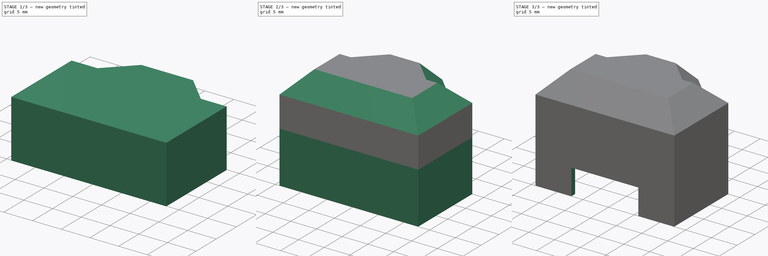
[diagram: build sequence overview — one tinted view per stage of 3, left to right]
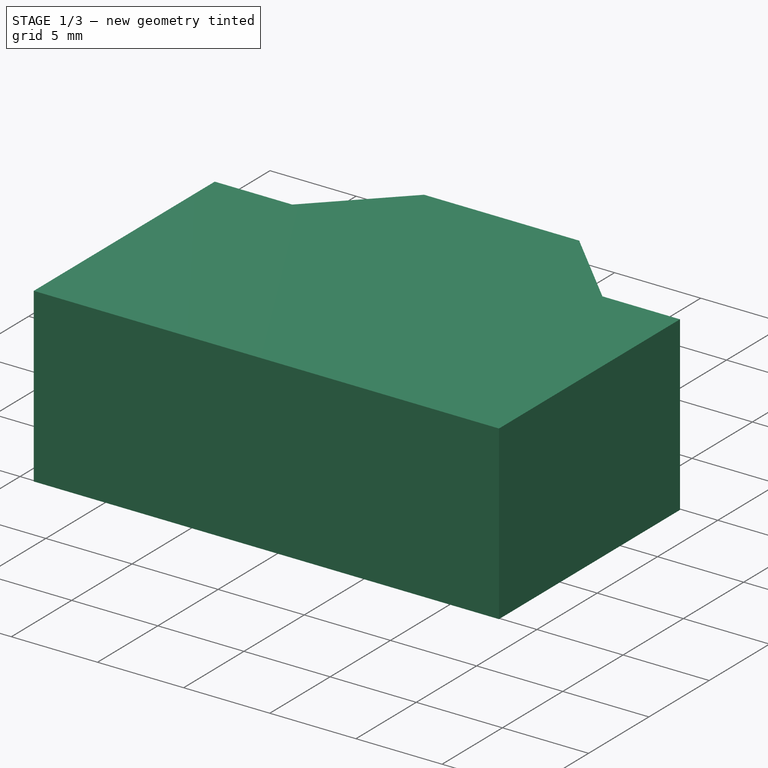
[diagram: stage 1 of 3 — iso view after this stage's code; geometry added in this stage tinted green]
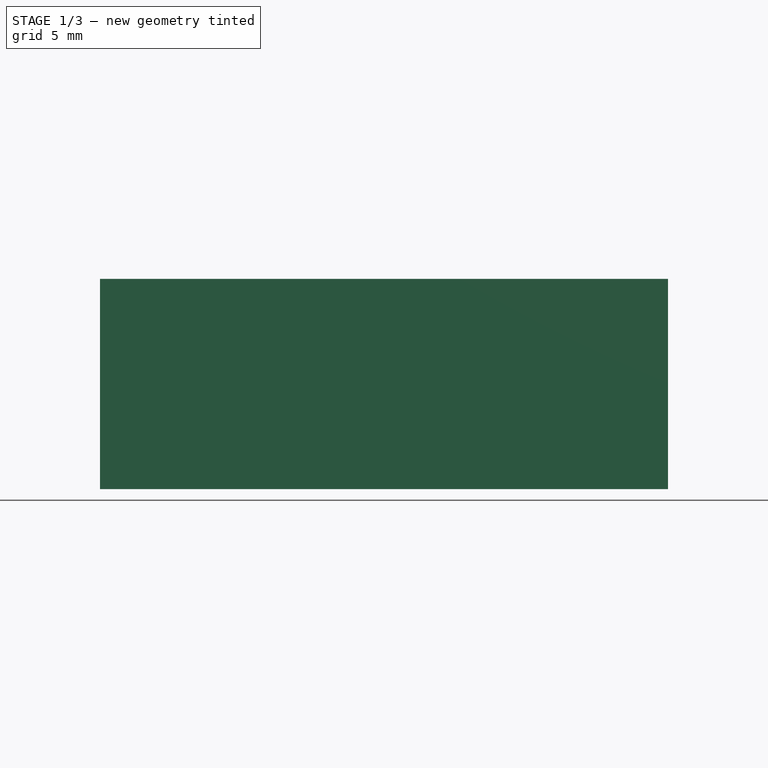
[diagram: stage 1 of 3 — front view after this stage's code; geometry added in this stage tinted green]
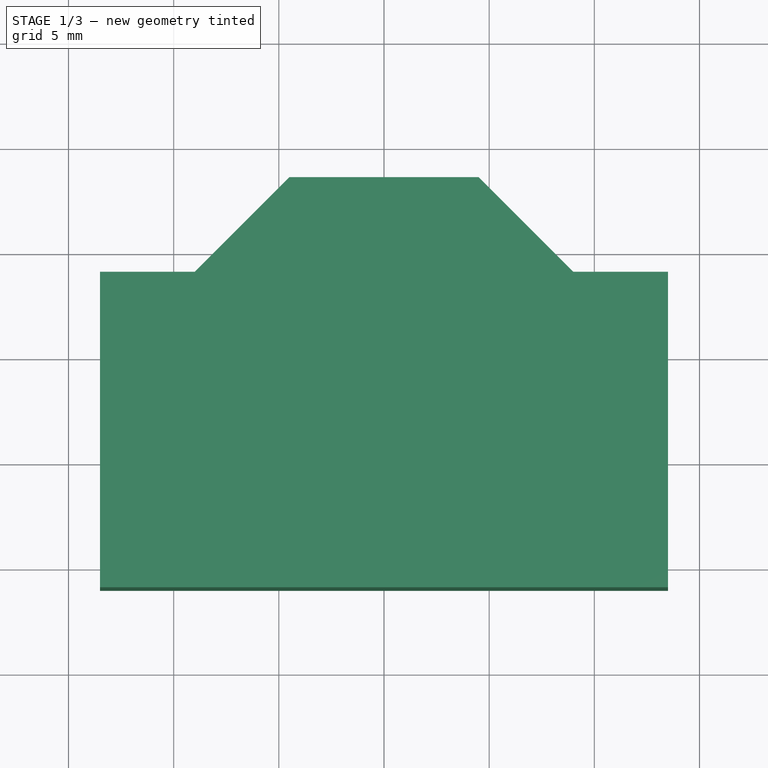
[diagram: stage 1 of 3 — top view after this stage's code; geometry added in this stage tinted green]
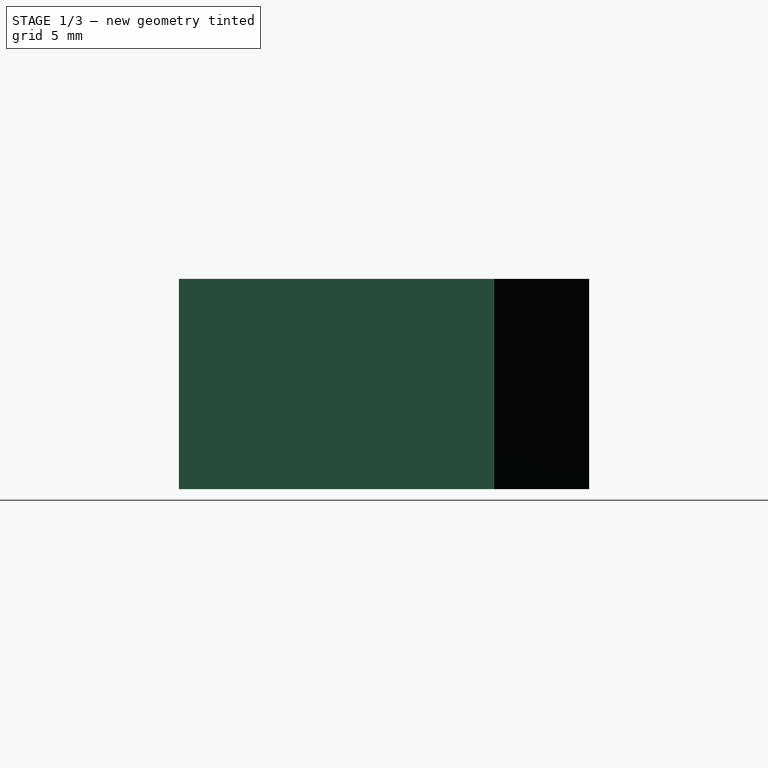
[diagram: stage 1 of 3 — right view after this stage's code; geometry added in this stage tinted green]
FCSTD DOCUMENT  (FreeCAD 0.16R6712 (Git))
Label: RGBCovering
License: All rights reserved
LicenseURL: http://en.wikipedia.org/wiki/All_rights_reserved
objects: Sketcher::SketchObject×4, PartDesign::Pad×2, PartDesign::Pocket×2, PartDesign::Chamfer×1, PartDesign::Fillet×1
note: 14 computed .brp shape members not serialized (recipe doc carries the construction recipe); baked Part::Feature solids carry a one-line shape summary decoded from their .brp

FEATURE [Sketcher::SketchObject] Sketch
  sketch-geometry (8):
    g0: LineSegment StartX=-4.5 StartY=8.5 StartZ=0 EndX=4.5 EndY=8.5 EndZ=0
    g1: LineSegment StartX=4.5 StartY=8.5 StartZ=0 EndX=9 EndY=4 EndZ=0
    g2: LineSegment StartX=9 StartY=4 StartZ=0 EndX=13.5 EndY=4 EndZ=0
    g3: LineSegment StartX=13.5 StartY=4 StartZ=0 EndX=13.5 EndY=-11 EndZ=0
    g4: LineSegment StartX=13.5 StartY=-11 StartZ=0 EndX=-13.5 EndY=-11 EndZ=0
    g5: LineSegment StartX=-13.5 StartY=-11 StartZ=0 EndX=-13.5 EndY=4 EndZ=0
    g6: LineSegment StartX=-13.5 StartY=4 StartZ=0 EndX=-9 EndY=4 EndZ=0
    g7: LineSegment StartX=-9 StartY=4 StartZ=0 EndX=-4.5 EndY=8.5 EndZ=0
  constraints (24):
    c: Horizontal(g0)
    c: Coincident(g0,g1)
    c: Horizontal(g2)
    c: Coincident(g2,g3)
    c: Vertical(g3)
    c: Coincident(g3,g4)
    c: Horizontal(g4)
    c: Coincident(g4,g5)
    c: Vertical(g5)
    c: Coincident(g5,g6)
    c: Horizontal(g6)
    c: Symmetric(g4,g3,g-2)
    c: Equal(g5,g3)
    c: Equal(g6,g2)
    c: Coincident(g7,g0)
    c: Equal(g7,g1)
    c: Distance(g4) = 27
    c: DistanceY(g4,g-1) = 11
    c: Angle(g7,g0) = 2.35619
    c: DistanceY(g0) = 8.5
    c: Coincident(g6,g7)
    c: Coincident(g2,g1)
    c: Distance(g0) = 9
    c: DistanceY(g5) = 4
FEATURE [PartDesign::Pad] Pad
  Length = 10
  Length2 = 100
  Sketch = -> Sketch
  Type = 0
FEATURE [Sketcher::SketchObject] Sketch001
  Placement = pos=(0,0,0) rot=(1,0,0;3.14159rad)
  Support = -> Pad [Face9]
  sketch-geometry (1):
    g0: Circle CenterX=0 CenterY=0 CenterZ=0 NormalX=0 NormalY=0 NormalZ=1 Radius=2.55
  constraints (2):
    c: Coincident(g0,g-1)
    c: Radius(g0) = 2.55
FEATURE [PartDesign::Pocket] Pocket
  Length = 8
  Sketch = -> Sketch001
  Type = 0
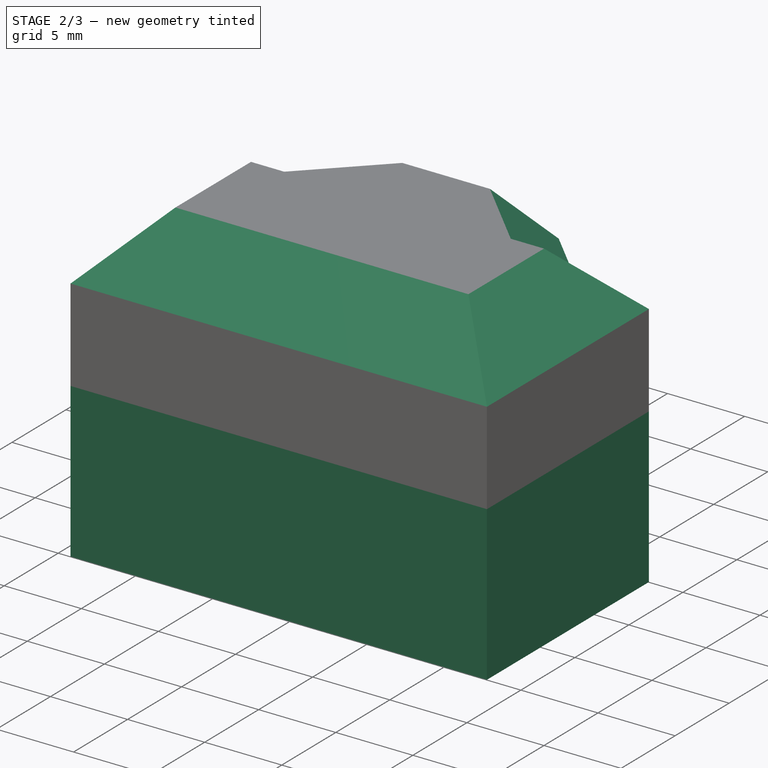
[diagram: stage 2 of 3 — iso view after this stage's code; geometry added in this stage tinted green]
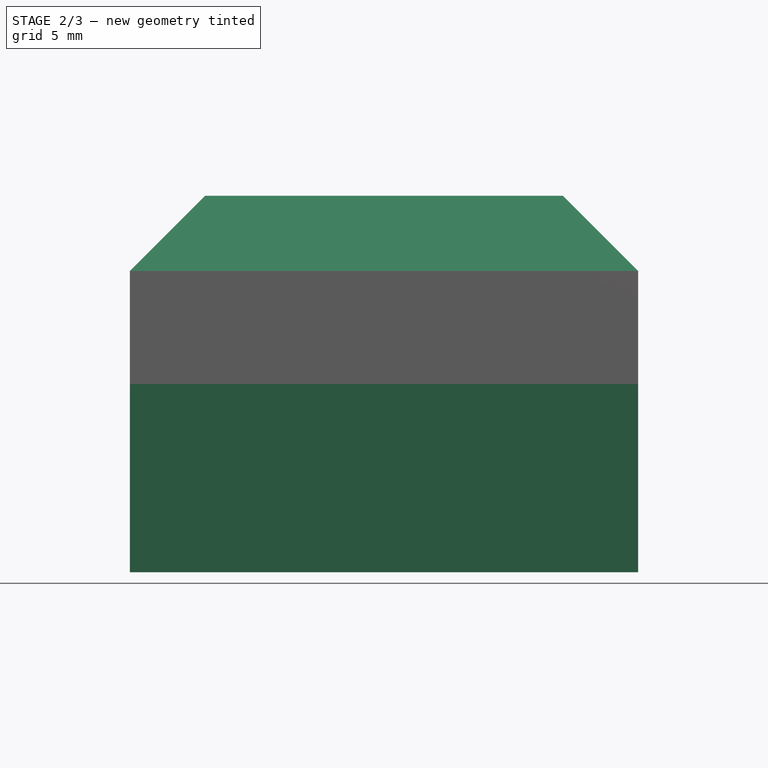
[diagram: stage 2 of 3 — front view after this stage's code; geometry added in this stage tinted green]
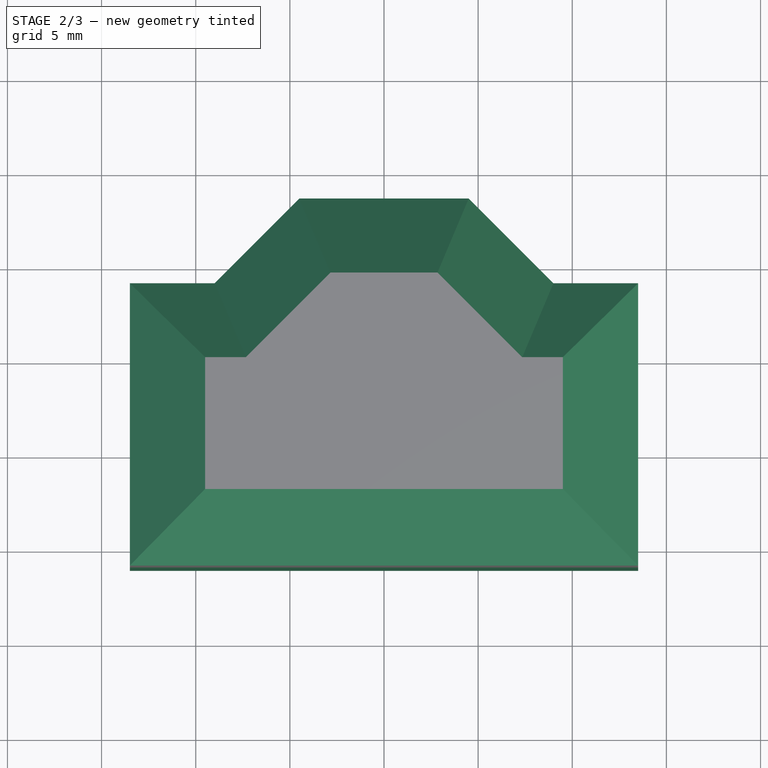
[diagram: stage 2 of 3 — top view after this stage's code; geometry added in this stage tinted green]
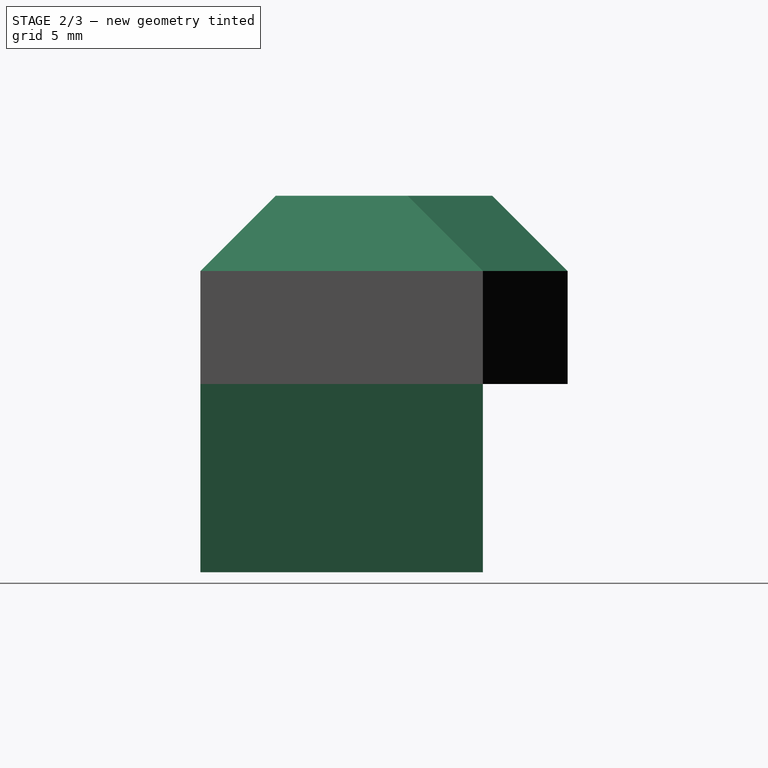
[diagram: stage 2 of 3 — right view after this stage's code; geometry added in this stage tinted green]
FEATURE [PartDesign::Chamfer] Chamfer
  Base = -> Pocket [Edge4,Edge10,Edge17,Edge18,Edge19,Edge20,Edge21,Edge7]
  Size = 4
FEATURE [Sketcher::SketchObject] Sketch002
  ExternalGeometry = -> [Chamfer]
  Placement = pos=(0,0,0) rot=(1,0,0;3.14159rad)
  Support = -> Chamfer [Face4]
  sketch-geometry (9):
    g0: LineSegment StartX=-13.5 StartY=-4 StartZ=0 EndX=-12.5 EndY=-4 EndZ=0
    g1: LineSegment StartX=-12.5 StartY=-4 StartZ=0 EndX=-12.5 EndY=10 EndZ=0
    g2: LineSegment StartX=-12.5 StartY=10 StartZ=0 EndX=12.5 EndY=10 EndZ=0
    g3: LineSegment StartX=12.5 StartY=10 StartZ=0 EndX=12.5 EndY=-4 EndZ=0
    g4: LineSegment StartX=12.5 StartY=-4 StartZ=0 EndX=13.5 EndY=-4 EndZ=0
    g5: LineSegment StartX=13.5 StartY=-4 StartZ=0 EndX=13.5 EndY=11 EndZ=0
    g6: LineSegment StartX=13.5 StartY=11 StartZ=0 EndX=-13.5 EndY=11 EndZ=0
    g7: LineSegment StartX=-13.5 StartY=11 StartZ=0 EndX=-13.5 EndY=-4 EndZ=0
    g8: LineSegment [constr] StartX=-12.5 StartY=10 StartZ=0 EndX=-12.5 EndY=11 EndZ=0
  constraints (25):
    c: Horizontal(g0)
    c: Coincident(g0,g1)
    c: Vertical(g1)
    c: Coincident(g1,g2)
    c: Horizontal(g2)
    c: Coincident(g2,g3)
    c: Vertical(g3)
    c: Coincident(g3,g4)
    c: Horizontal(g4)
    c: Coincident(g4,g5)
    c: Vertical(g5)
    c: Coincident(g5,g6)
    c: Horizontal(g6)
    c: Coincident(g6,g7)
    c: Vertical(g7)
    c: Coincident(g7,g0)
    c: Coincident(g8,g1)
    c: PointOnObject(g8,g6)
    c: Vertical(g8)
    c: Equal(g8,g0)
    c: Equal(g0,g4)
    c: Distance(g0) = 1
    c: Coincident(g0,g-4)
    c: Coincident(g6,g-3)
    c: Coincident(g4,g-5)
FEATURE [PartDesign::Pad] Pad001
  Length = 10
  Length2 = 100
  Sketch = -> Sketch002
  Type = 0
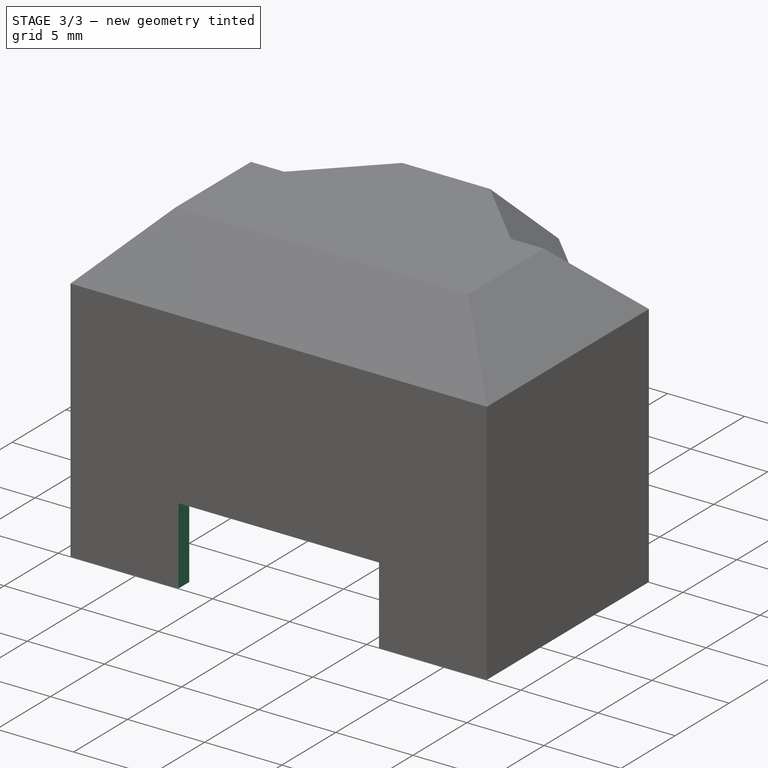
[diagram: stage 3 of 3 — iso view after this stage's code; geometry added in this stage tinted green]
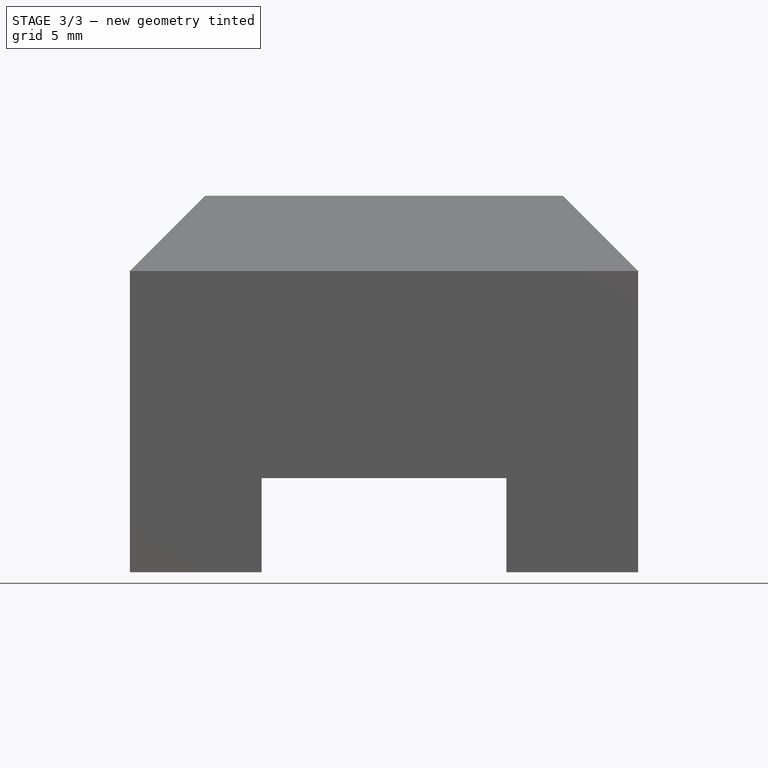
[diagram: stage 3 of 3 — front view after this stage's code; geometry added in this stage tinted green]
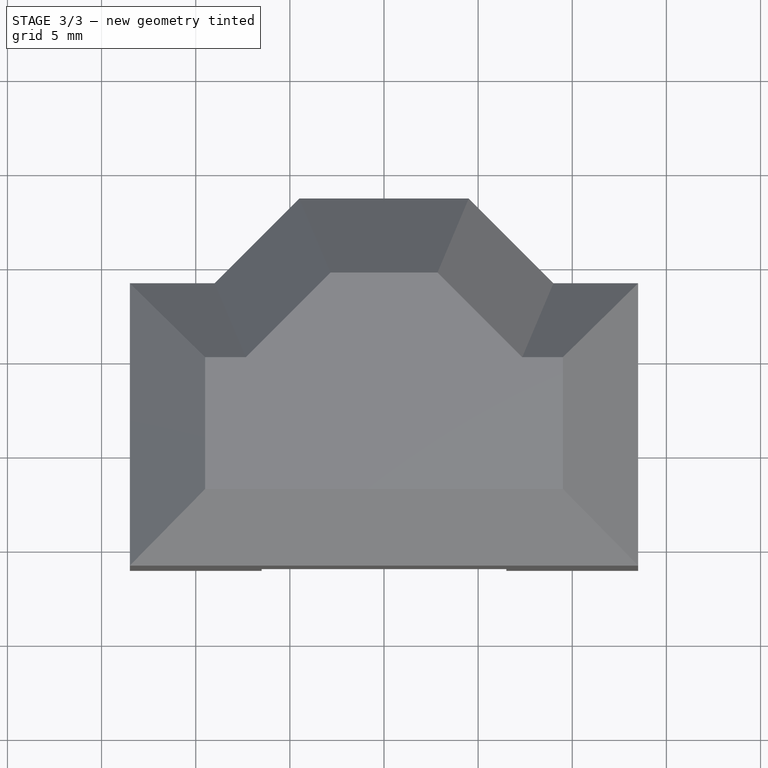
[diagram: stage 3 of 3 — top view after this stage's code; geometry added in this stage tinted green]
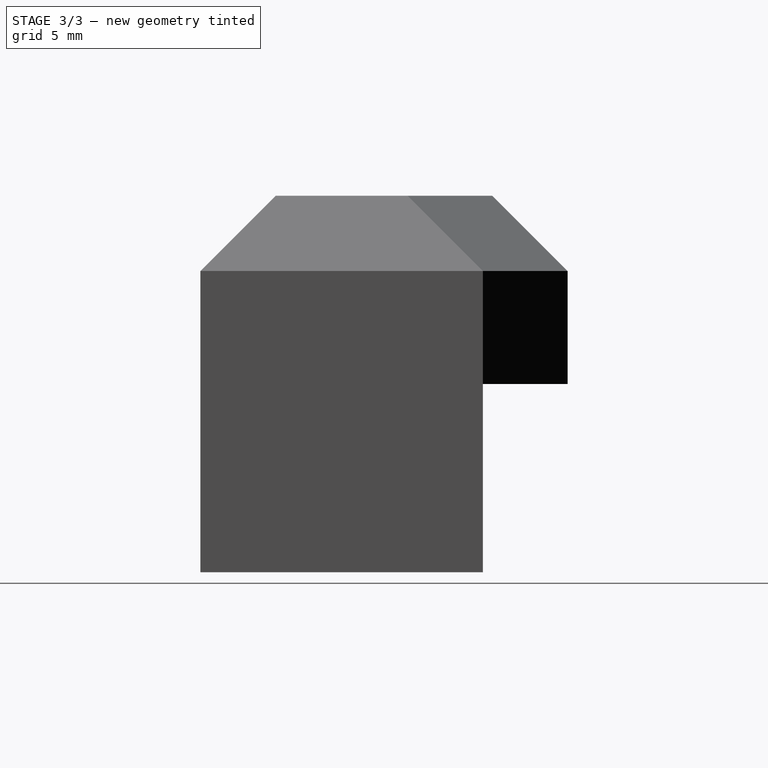
[diagram: stage 3 of 3 — right view after this stage's code; geometry added in this stage tinted green]
FEATURE [Sketcher::SketchObject] Sketch003
  Placement = pos=(0,-11,0) rot=(1,0,0;1.5708rad)
  Support = -> Pad001 [Face8]
  sketch-geometry (4):
    g0: LineSegment StartX=-6.5 StartY=-5 StartZ=0 EndX=6.5 EndY=-5 EndZ=0
    g1: LineSegment StartX=6.5 StartY=-5 StartZ=0 EndX=6.5 EndY=-11.8448 EndZ=0
    g2: LineSegment StartX=6.5 StartY=-11.8448 StartZ=0 EndX=-6.5 EndY=-11.8448 EndZ=0
    g3: LineSegment StartX=-6.5 StartY=-11.8448 StartZ=0 EndX=-6.5 EndY=-5 EndZ=0
  constraints (11):
    c: Coincident(g0,g1)
    c: Coincident(g1,g2)
    c: Coincident(g2,g3)
    c: Coincident(g3,g0)
    c: Horizontal(g0)
    c: Horizontal(g2)
    c: Vertical(g1)
    c: Vertical(g3)
    c: Symmetric(g0,g0,g-2)
    c: Distance(g0) = 13
    c: DistanceY(g0,g-1) = 5
FEATURE [PartDesign::Pocket] Pocket001
  Length = 5
  Sketch = -> Sketch003
  Type = 1
FEATURE [PartDesign::Fillet] Fillet
  Base = -> Pocket001 [Edge34,Edge12,Edge10]
  Radius = 2
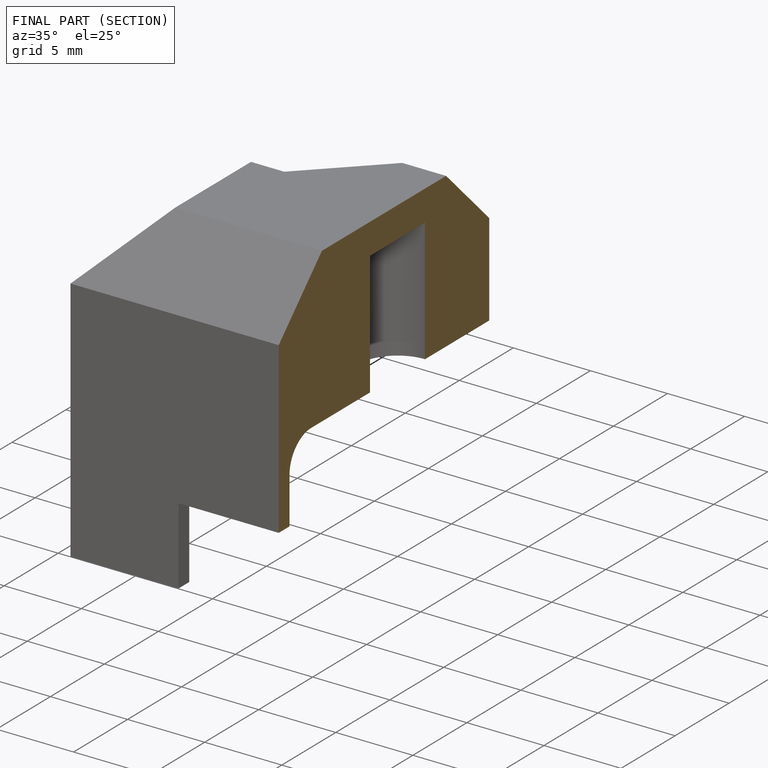
[diagram: finished part — half-section view (interior)]
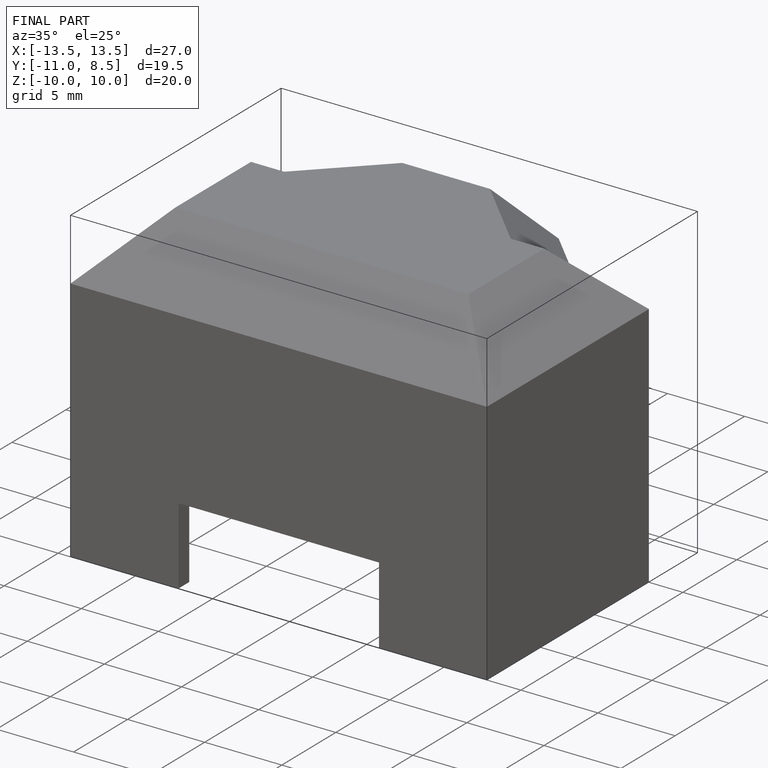
[diagram: finished part — iso view with bounding-box wireframe]
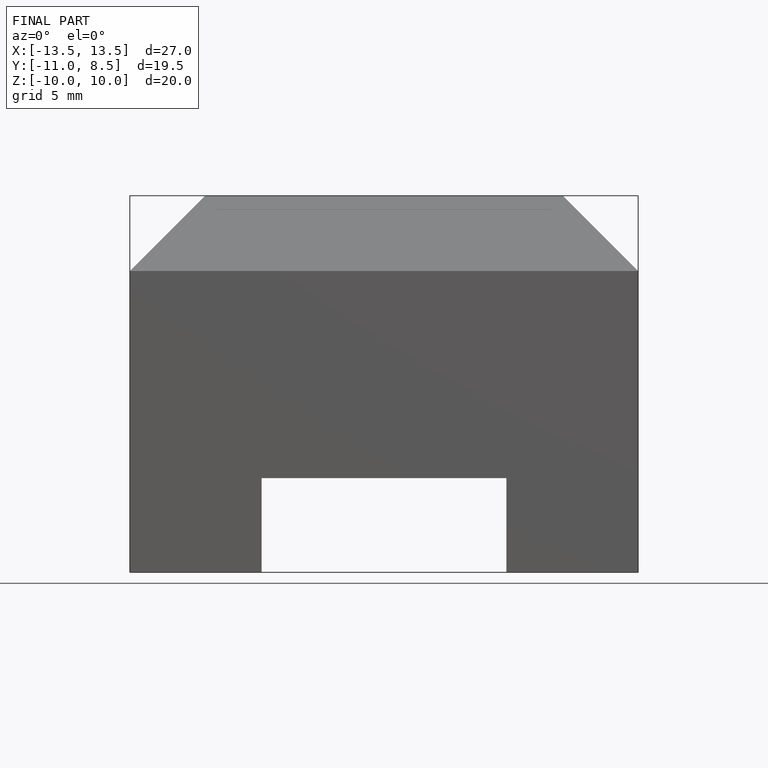
[diagram: finished part — front view with bounding-box wireframe]
